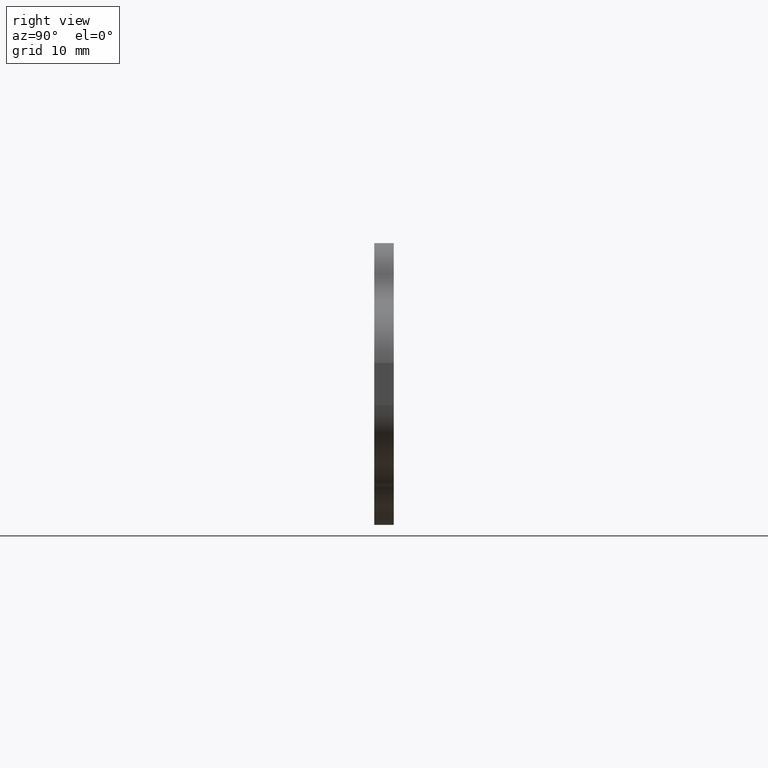
[diagram: clean part render]
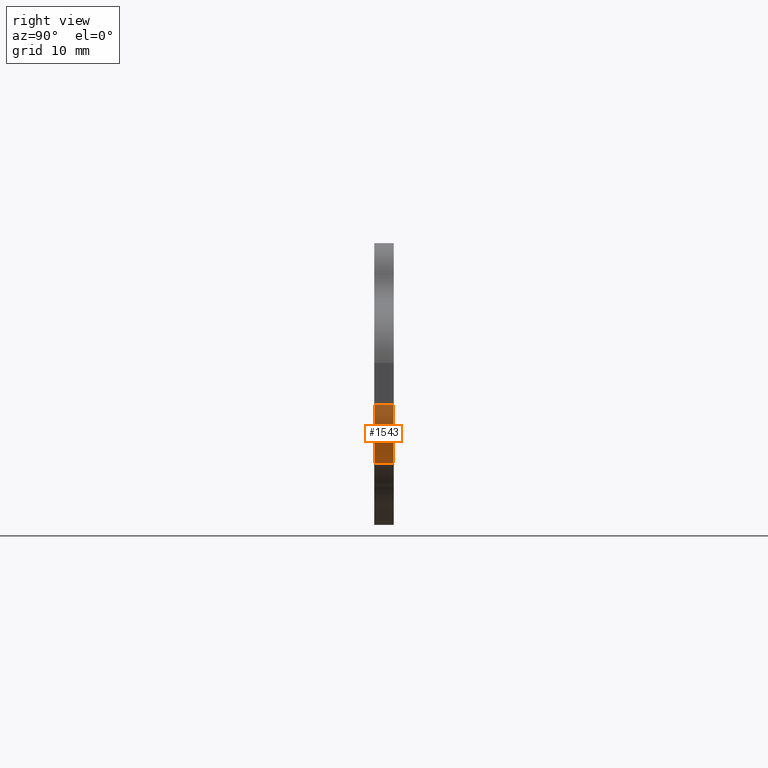
[diagram: same view with one face highlighted and labeled with its STEP entity id]
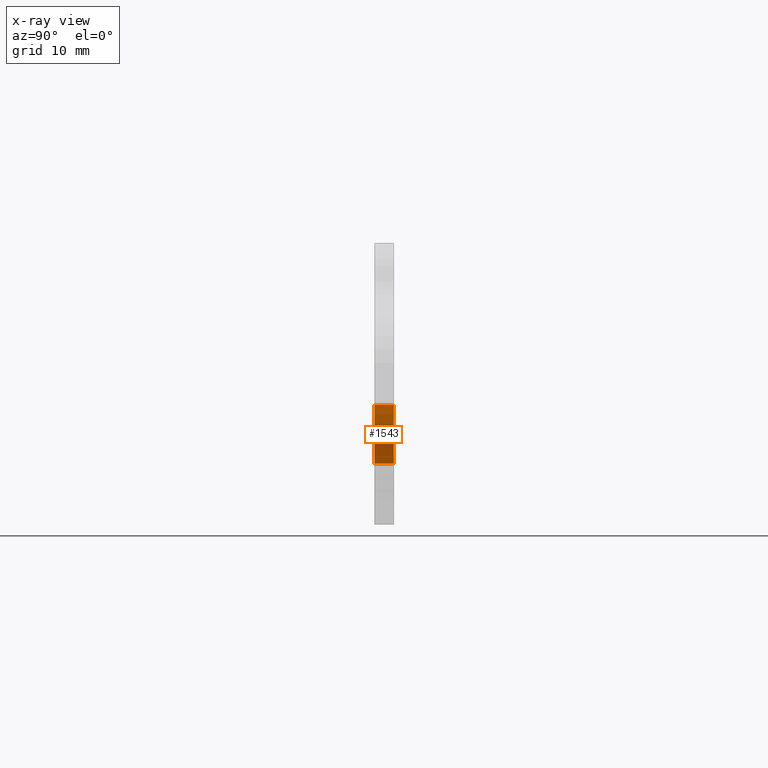
[diagram: x-ray of the same camera — body ghosted, the highlighted face saturated]
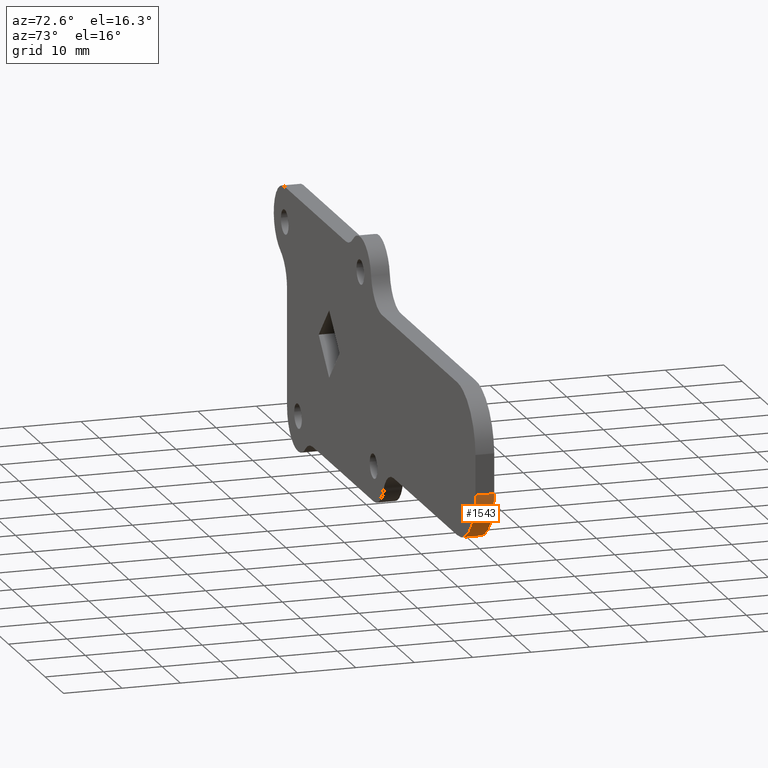
[diagram: same view with one face highlighted and labeled with its STEP entity id]
A machine part, right view. The second image highlights one B-rep face of the part: STEP entity #1543.
The next image is the same camera in x-ray: the body ghosted, the highlighted face saturated — about 0% of this face is hidden behind the body in this view.
A second angle (auxiliary view) of the same face is appended — the face is thin or edge-on in the first view.
In plain terms, the highlighted face is a freeform B-spline surface patch.
Its self-contained STEP definition (entity closure, byte-faithful):
#872=CARTESIAN_POINT('',(79.926497335431591,0.0,-3.428571490558110));
#873=VERTEX_POINT('',#872);
#887=CARTESIAN_POINT('',(69.935685229771096,0.0,-13.000000061986681));
#888=VERTEX_POINT('',#887);
#889=CARTESIAN_POINT('',(69.935685229771096,0.0,-13.000000061986681));
#890=CARTESIAN_POINT('',(79.515916016020881,0.0,-13.000000061986682));
#891=CARTESIAN_POINT('',(79.926497335431591,0.0,-3.428571490558111));
#899=(BOUNDED_CURVE()B_SPLINE_CURVE(2,(#889,#890,#891),.UNSPECIFIED.,.F.,.U.)CURVE()GEOMETRIC_REPRESENTATION_ITEM()QUASI_UNIFORM_CURVE()RATIONAL_B_SPLINE_CURVE((1.0,0.722100111777149,1.0))REPRESENTATION_ITEM(''));
#900=EDGE_CURVE('',#888,#873,#899,.T.);
#1170=CARTESIAN_POINT('',(69.935685229771096,-3.200000000000000,-13.000000061986681));
#1171=VERTEX_POINT('',#1170);
#1177=CARTESIAN_POINT('',(79.926497335431591,-3.200000000000000,-3.428571490558110));
#1178=VERTEX_POINT('',#1177);
#1179=CARTESIAN_POINT('',(69.935685229771096,-3.200000000000000,-13.000000061986681));
#1180=CARTESIAN_POINT('',(79.515916016020881,-3.200000000000000,-13.000000061986682));
#1181=CARTESIAN_POINT('',(79.926497335431591,-3.200000000000000,-3.428571490558111));
#1189=(BOUNDED_CURVE()B_SPLINE_CURVE(2,(#1179,#1180,#1181),.UNSPECIFIED.,.F.,.U.)CURVE()GEOMETRIC_REPRESENTATION_ITEM()QUASI_UNIFORM_CURVE()RATIONAL_B_SPLINE_CURVE((1.0,0.722100111777149,1.0))REPRESENTATION_ITEM(''));
#1190=EDGE_CURVE('',#1171,#1178,#1189,.T.);
#1511=CARTESIAN_POINT('',(79.926497335431591,-3.200000000000000,-3.428571490558110));
#1512=CARTESIAN_POINT('',(79.926497335431591,0.0,-3.428571490558110));
#1513=QUASI_UNIFORM_CURVE('',1,(#1511,#1512),.UNSPECIFIED.,.F.,.U.);
#1514=EDGE_CURVE('',#1178,#873,#1513,.T.);
#1519=CARTESIAN_POINT('',(69.673915746692344,-3.280000000000001,-12.996573311742250));
#1520=CARTESIAN_POINT('',(69.673915746692344,0.082000000000000,-12.996573311742250));
#1521=CARTESIAN_POINT('',(80.025670380842115,-3.280000000000000,-13.267643546695577));
#1522=CARTESIAN_POINT('',(80.025670380842115,0.082000000000000,-13.267643546695577));
#1523=CARTESIAN_POINT('',(79.935304460412794,-3.280000000000001,-2.912734707002969));
#1524=CARTESIAN_POINT('',(79.935304460412794,0.082000000000000,-2.912734707002969));
#1532=(BOUNDED_SURFACE()B_SPLINE_SURFACE(1,2,((#1519,#1521,#1523),(#1520,#1522,#1524)),.UNSPECIFIED.,.F.,.F.,.U.)B_SPLINE_SURFACE_WITH_KNOTS((2,2),(3,3),(0.0,3.362000000000001),(0.0,16.978992648384182),.UNSPECIFIED.)GEOMETRIC_REPRESENTATION_ITEM()RATIONAL_B_SPLINE_SURFACE(((1.0,0.694658370458997,1.0),(1.0,0.694658370458997,1.0)))REPRESENTATION_ITEM('')SURFACE());
#1533=ORIENTED_EDGE('',*,*,#900,.T.);
#1534=ORIENTED_EDGE('',*,*,#1514,.F.);
#1535=ORIENTED_EDGE('',*,*,#1190,.F.);
#1536=CARTESIAN_POINT('',(69.935685229771096,-3.200000000000000,-13.000000061986681));
#1537=CARTESIAN_POINT('',(69.935685229771096,0.0,-13.000000061986681));
#1538=QUASI_UNIFORM_CURVE('',1,(#1536,#1537),.UNSPECIFIED.,.F.,.U.);
#1539=EDGE_CURVE('',#1171,#888,#1538,.T.);
#1540=ORIENTED_EDGE('',*,*,#1539,.T.);
#1541=EDGE_LOOP('',(#1533,#1534,#1535,#1540));
#1542=FACE_OUTER_BOUND('',#1541,.T.);
#1543=ADVANCED_FACE('',(#1542),#1532,.T.);